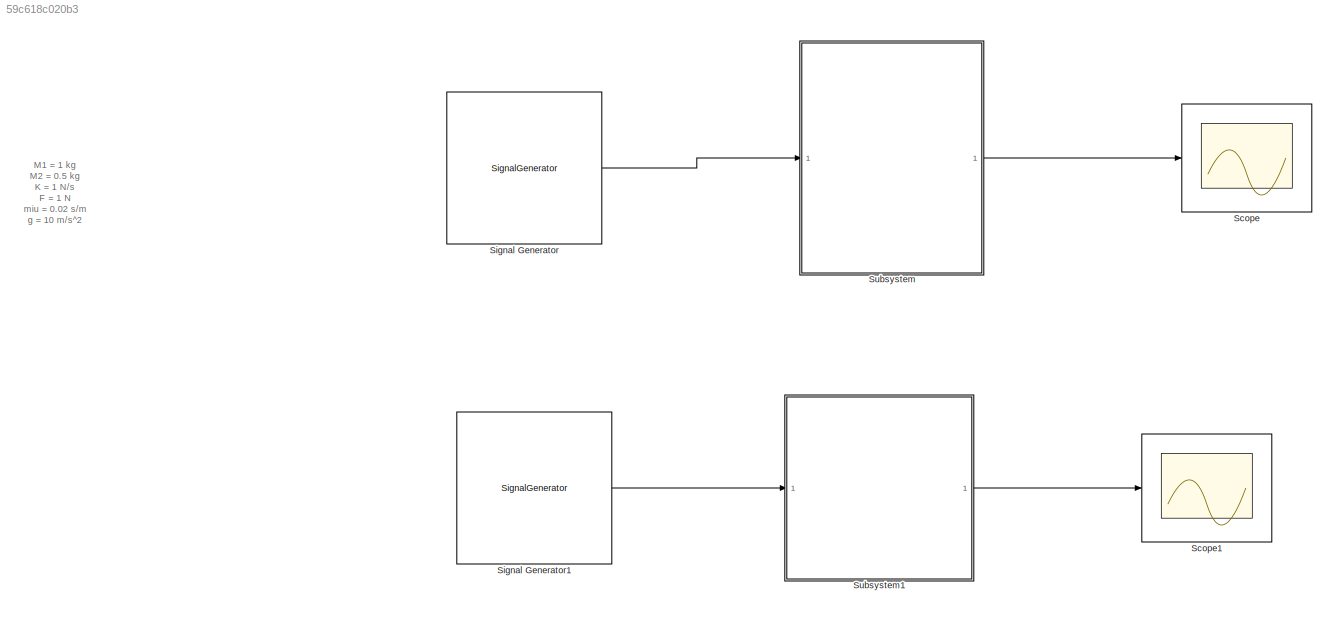
MODEL slx_59c618c020b3
KIND model
CONFIG AbsTol = auto
CONFIG EnableMultiTasking = off
CONFIG FixedStep = auto
CONFIG MaxStep = auto
CONFIG MinStep = auto
CONFIG RelTol = 1e-3
CONFIG SampleTimeConstraint = Unconstrained
CONFIG SolverName = VariableStepAuto
CONFIG StartTime = 0.0
CONFIG StopTime = 10.0
BLOCK [Scope] Scope
  Floating = off
  NumInputPorts = 1
  Ports = [1]
  ScopeSpecificationString = Simulink.scopes.TimeScopeBlockCfg('CurrentConfiguration', extmgr.ConfigurationSet(extmgr.Configuration('Core','General UI',true),extmgr.Configuration('Core','Source UI',true),extmgr.Configuration('Sources','WiredSimulink',true),extmgr.Configuration('Visuals','Time Domain',true,'SerializedDisplays',{struct('MinYLimReal','-0.06887','MaxYLimReal','0.61982','YLabelReal','','MinYLimMag','0.00000','MaxY...<+1355ch>
BLOCK [Scope] Scope1
  Floating = off
  NumInputPorts = 1
  Ports = [1]
  ScopeSpecificationString = Simulink.scopes.TimeScopeBlockCfg('CurrentConfiguration', extmgr.ConfigurationSet(extmgr.Configuration('Core','General UI',true),extmgr.Configuration('Core','Source UI',true),extmgr.Configuration('Sources','WiredSimulink',true,'DataLoggingVariableName','ScopeData1'),extmgr.Configuration('Visuals','Time Domain',true,'SerializedDisplays',{struct('MinYLimReal','-1.24926','MaxYLimReal','1.24871','YLab...<+1369ch>
BLOCK [SignalGenerator] Signal Generator
  Amplitude = -1
  Frequency = 0.001
  Ports = [0, 1]
  WaveForm = square
BLOCK [SignalGenerator] Signal Generator1
  Ports = [0, 1]
  Units = rad/sec
  WaveForm = square
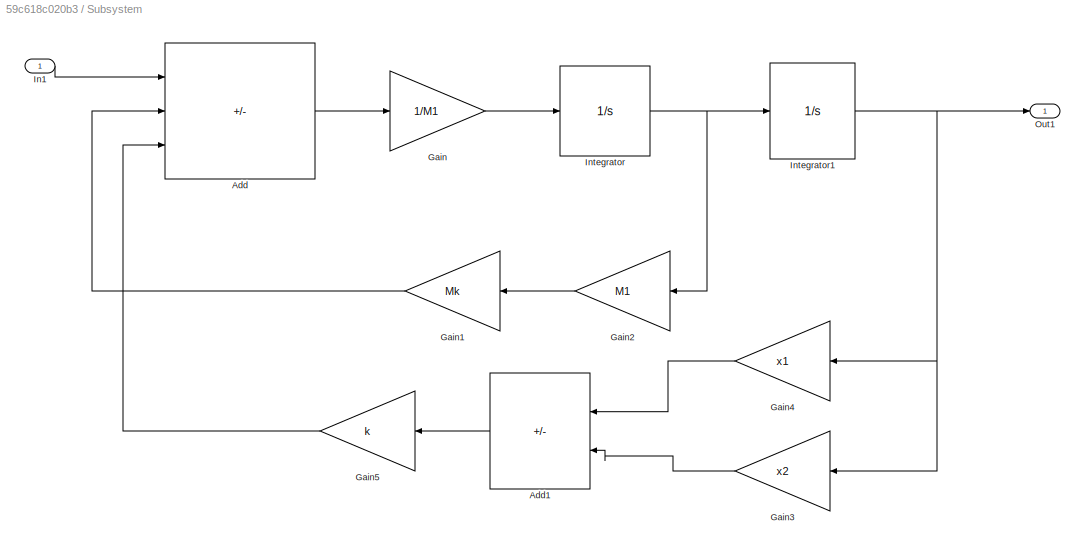
BLOCK [SubSystem] Subsystem
  Ports = [1, 1]
  RequestExecContextInheritance = off
BLOCK [Sum] Subsystem/Add
  IconShape = rectangular
  Inputs = +--
  Ports = [3, 1]
BLOCK [Sum] Subsystem/Add1
  IconShape = rectangular
  Inputs = -+
  NameLocation = top
  Ports = [2, 1]
BLOCK [Gain] Subsystem/Gain
  Gain = 1/M1
BLOCK [Gain] Subsystem/Gain1
  Gain = Mk
  NameLocation = top
BLOCK [Gain] Subsystem/Gain2
  Gain = M1
  NameLocation = top
BLOCK [Gain] Subsystem/Gain3
  Gain = x2
  NameLocation = top
BLOCK [Gain] Subsystem/Gain4
  Gain = x1
  NameLocation = top
BLOCK [Gain] Subsystem/Gain5
  Gain = k
  NameLocation = top
BLOCK [Inport] Subsystem/In1
BLOCK [Integrator] Subsystem/Integrator
  Ports = [1, 1]
BLOCK [Integrator] Subsystem/Integrator1
  Ports = [1, 1]
BLOCK [Outport] Subsystem/Out1
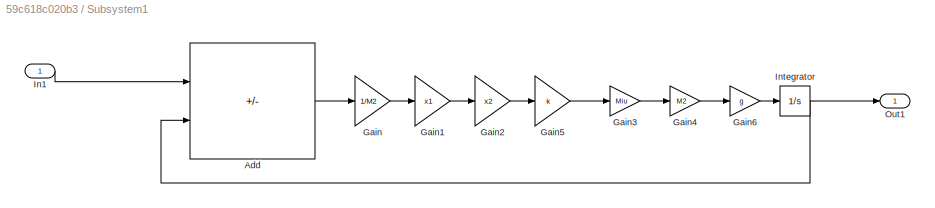
BLOCK [SubSystem] Subsystem1
  Ports = [1, 1]
  RequestExecContextInheritance = off
BLOCK [Sum] Subsystem1/Add
  IconShape = rectangular
  Inputs = +-
  Ports = [2, 1]
BLOCK [Gain] Subsystem1/Gain
  Gain = 1/M2
BLOCK [Gain] Subsystem1/Gain1
  Gain = x1
BLOCK [Gain] Subsystem1/Gain2
  Gain = x2
BLOCK [Gain] Subsystem1/Gain3
  Gain = Miu
BLOCK [Gain] Subsystem1/Gain4
  Gain = M2
BLOCK [Gain] Subsystem1/Gain5
  Gain = k
BLOCK [Gain] Subsystem1/Gain6
  Gain = g
BLOCK [Inport] Subsystem1/In1
BLOCK [Integrator] Subsystem1/Integrator
  Ports = [1, 1]
BLOCK [Outport] Subsystem1/Out1
ANNOTATION (root): M1 = 1 kg M2 = 0.5 kg K = 1 N/s F = 1 N miu = 0.02 s/m g = 10 m/s^2
LINE Signal Generator1:1 -> Subsystem1:1
LINE Signal Generator:1 -> Subsystem:1
LINE Subsystem/Add1:1 -> Subsystem/Gain5:1
LINE Subsystem/Add:1 -> Subsystem/Gain:1
LINE Subsystem/Gain1:1 -> Subsystem/Add:2
LINE Subsystem/Gain2:1 -> Subsystem/Gain1:1
LINE Subsystem/Gain3:1 -> Subsystem/Add1:2
LINE Subsystem/Gain4:1 -> Subsystem/Add1:1
LINE Subsystem/Gain5:1 -> Subsystem/Add:3
LINE Subsystem/Gain:1 -> Subsystem/Integrator:1
LINE Subsystem/In1:1 -> Subsystem/Add:1
NET Subsystem/Integrator1:1 -> Subsystem/Gain3:1, Subsystem/Gain4:1, Subsystem/Out1:1
NET Subsystem/Integrator:1 -> Subsystem/Gain2:1, Subsystem/Integrator1:1
LINE Subsystem1/Add:1 -> Subsystem1/Gain:1
LINE Subsystem1/Gain1:1 -> Subsystem1/Gain2:1
LINE Subsystem1/Gain2:1 -> Subsystem1/Gain5:1
LINE Subsystem1/Gain3:1 -> Subsystem1/Gain4:1
LINE Subsystem1/Gain4:1 -> Subsystem1/Gain6:1
LINE Subsystem1/Gain5:1 -> Subsystem1/Gain3:1
LINE Subsystem1/Gain6:1 -> Subsystem1/Integrator:1
LINE Subsystem1/Gain:1 -> Subsystem1/Gain1:1
LINE Subsystem1/In1:1 -> Subsystem1/Add:1
NET Subsystem1/Integrator:1 -> Subsystem1/Add:2, Subsystem1/Out1:1
LINE Subsystem1:1 -> Scope1:1
LINE Subsystem:1 -> Scope:1
note: NET lines group one-source signal fan-out (src -> all destinations, sorted); 1:1 wires keep LINE
